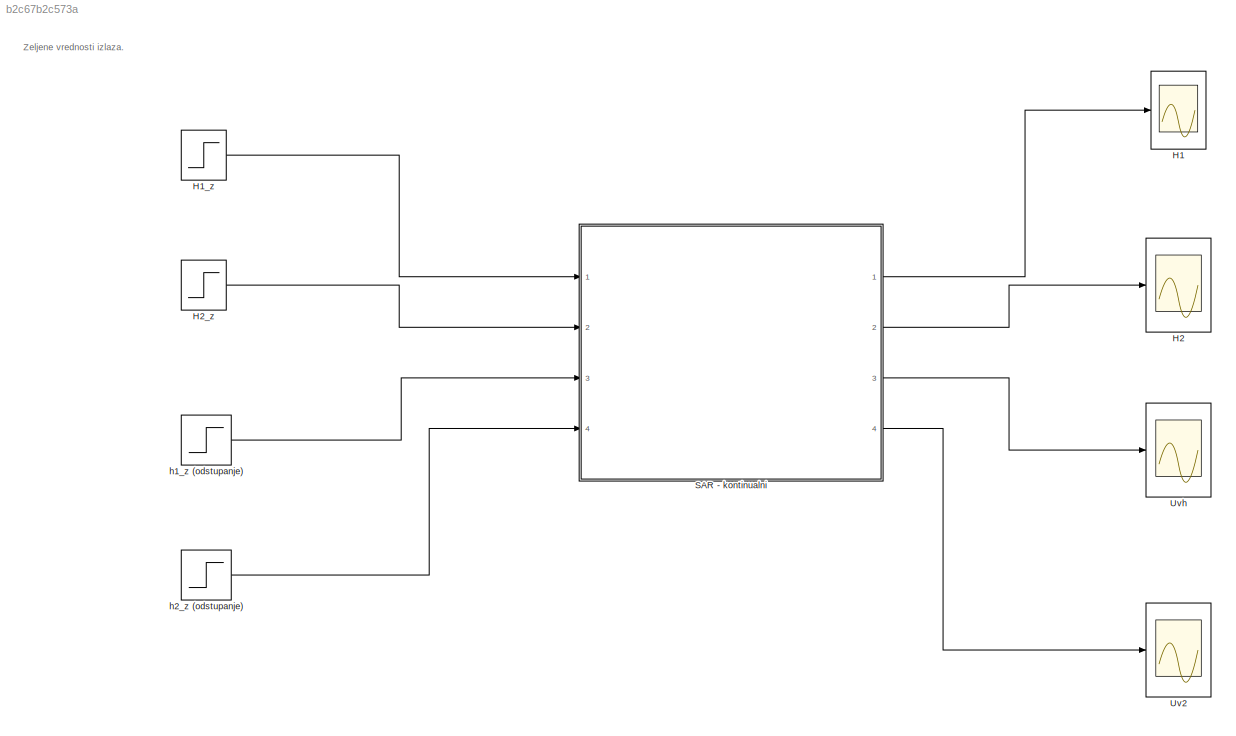
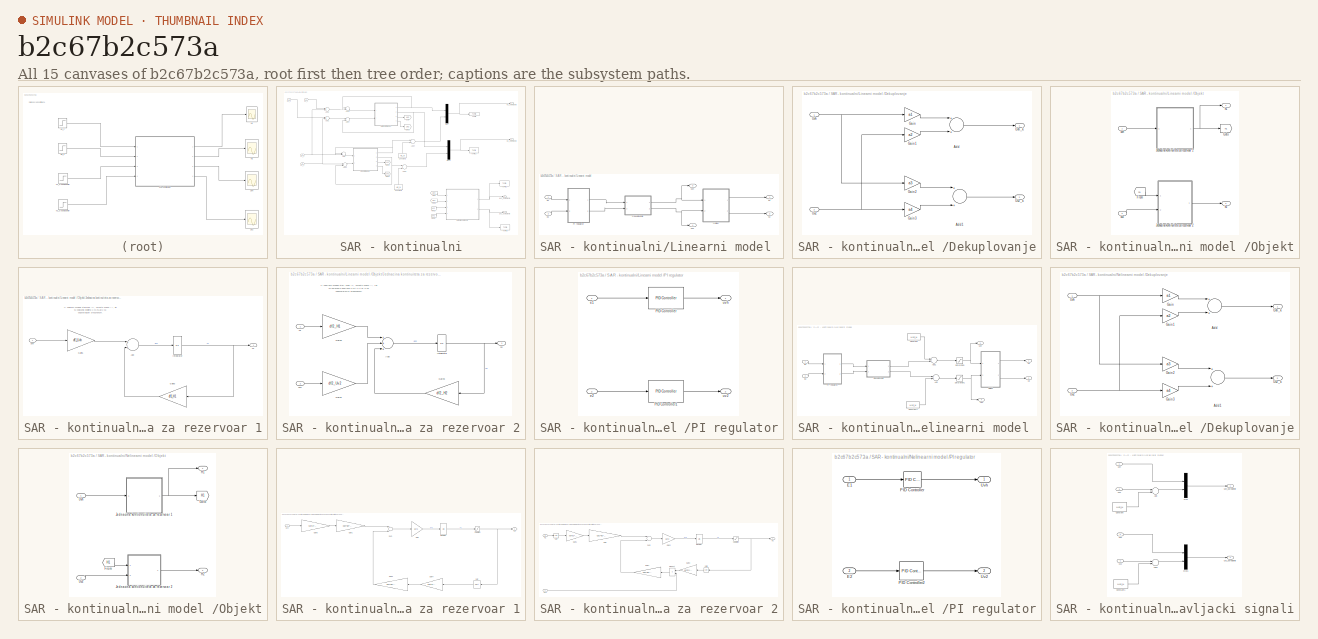
[diagram: thumbnail index - all 15 canvases of the model, root first then tree order]
MODEL slx_b2c67b2c573a
KIND model
CONFIG AbsTol = auto
CONFIG FixedStep = 0.01
CONFIG MaxStep = auto
CONFIG MinStep = auto
CONFIG RelTol = 1e-3
CONFIG SampleTimeConstraint = Unconstrained
CONFIG Solver = ode4
CONFIG SolverMode = Auto
CONFIG SolverName = ode4
CONFIG StartTime = 0.0
CONFIG StopTime = 400
BLOCK [Scope]  H2 
  Floating = off
  LimitDataPoints = off
  NumInputPorts = 1
  Ports = [1]
  SaveName = ScopeData4
BLOCK [Scope] H1
  Floating = off
  LimitDataPoints = off
  NumInputPorts = 1
  Ports = [1]
  SaveName = ScopeData3
BLOCK [Step] H1_z 
  After = H1_N
  SampleTime = 0
  Time = 0
BLOCK [Step] H2_z
  After = H2_N
  SampleTime = 0
  Time = 0
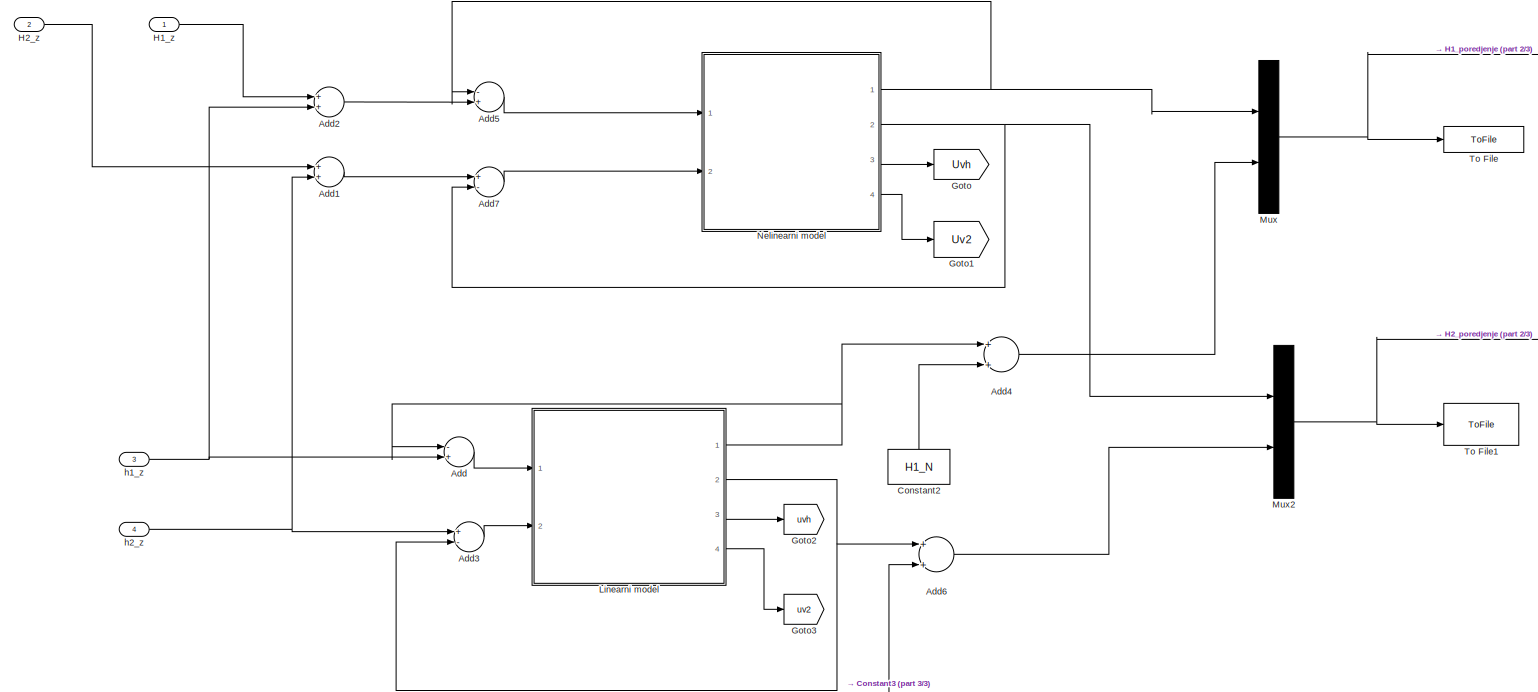
[diagram: SAR - kontinualni - part 1/3, full width, middle band]
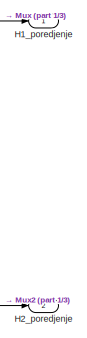
[diagram: SAR - kontinualni - part 2/3, top right region]
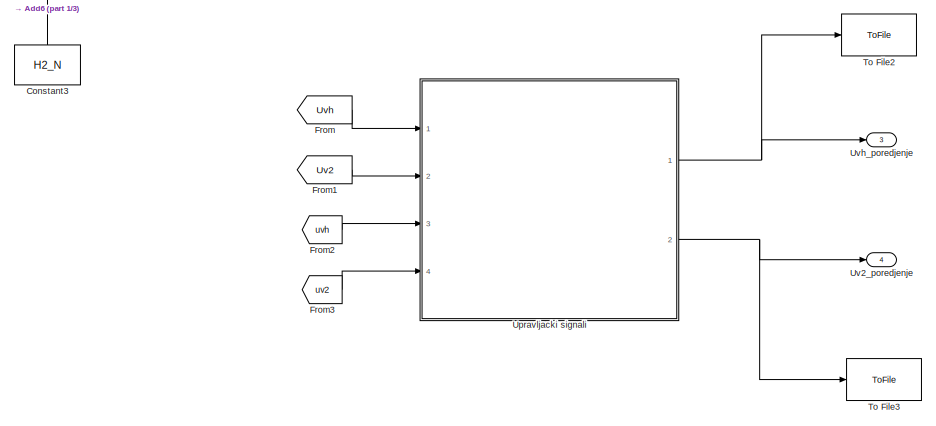
[diagram: SAR - kontinualni - part 3/3, bottom right region]
BLOCK [SubSystem] SAR - kontinualni
  Ports = [4, 4]
  RequestExecContextInheritance = off
BLOCK [Sum] SAR - kontinualni/Add
  InputSameDT = off
  Inputs = -+
  OutDataTypeStr = Inherit: Inherit via internal rule
  Ports = [2, 1]
  SaturateOnIntegerOverflow = off
BLOCK [Sum] SAR - kontinualni/Add1
  InputSameDT = off
  OutDataTypeStr = Inherit: Inherit via internal rule
  Ports = [2, 1]
  SaturateOnIntegerOverflow = off
BLOCK [Sum] SAR - kontinualni/Add2
  InputSameDT = off
  OutDataTypeStr = Inherit: Inherit via internal rule
  Ports = [2, 1]
  SaturateOnIntegerOverflow = off
BLOCK [Sum] SAR - kontinualni/Add3
  InputSameDT = off
  Inputs = +-
  OutDataTypeStr = Inherit: Inherit via internal rule
  Ports = [2, 1]
  SaturateOnIntegerOverflow = off
BLOCK [Sum] SAR - kontinualni/Add4
  InputSameDT = off
  OutDataTypeStr = Inherit: Inherit via internal rule
  Ports = [2, 1]
  SaturateOnIntegerOverflow = off
BLOCK [Sum] SAR - kontinualni/Add5
  InputSameDT = off
  Inputs = -+
  OutDataTypeStr = Inherit: Inherit via internal rule
  Ports = [2, 1]
  SaturateOnIntegerOverflow = off
BLOCK [Sum] SAR - kontinualni/Add6
  InputSameDT = off
  OutDataTypeStr = Inherit: Inherit via internal rule
  Ports = [2, 1]
  SaturateOnIntegerOverflow = off
BLOCK [Sum] SAR - kontinualni/Add7
  InputSameDT = off
  Inputs = +-
  OutDataTypeStr = Inherit: Inherit via internal rule
  Ports = [2, 1]
  SaturateOnIntegerOverflow = off
BLOCK [Constant] SAR - kontinualni/Constant2
  Value = H1_N
BLOCK [Constant] SAR - kontinualni/Constant3
  Value = H2_N
BLOCK [From] SAR - kontinualni/From
  GotoTag = Uvh
BLOCK [From] SAR - kontinualni/From1
  GotoTag = Uv2
BLOCK [From] SAR - kontinualni/From2
  GotoTag = uvh
BLOCK [From] SAR - kontinualni/From3
  GotoTag = uv2
BLOCK [Goto] SAR - kontinualni/Goto
  GotoTag = Uvh
BLOCK [Goto] SAR - kontinualni/Goto1
  GotoTag = Uv2
BLOCK [Goto] SAR - kontinualni/Goto2
  GotoTag = uvh
BLOCK [Goto] SAR - kontinualni/Goto3
  GotoTag = uv2
BLOCK [Outport] SAR - kontinualni/H1_poredjenje
  IconDisplay = Port number
BLOCK [Inport] SAR - kontinualni/H1_z
  IconDisplay = Port number
BLOCK [Outport] SAR - kontinualni/H2_poredjenje
  IconDisplay = Port number
  Port = 2
BLOCK [Inport] SAR - kontinualni/H2_z
  IconDisplay = Port number
  Port = 2
BLOCK [SubSystem] SAR - kontinualni/Linearni model 
  Ports = [2, 4]
  RequestExecContextInheritance = off
BLOCK [SubSystem] SAR - kontinualni/Linearni model /Dekuplovanje
  Ports = [2, 2]
  RequestExecContextInheritance = off
BLOCK [Sum] SAR - kontinualni/Linearni model /Dekuplovanje/Add
  InputSameDT = off
  OutDataTypeStr = Inherit: Inherit via internal rule
  Ports = [2, 1]
  SaturateOnIntegerOverflow = off
BLOCK [Sum] SAR - kontinualni/Linearni model /Dekuplovanje/Add1
  InputSameDT = off
  OutDataTypeStr = Inherit: Inherit via internal rule
  Ports = [2, 1]
  SaturateOnIntegerOverflow = off
BLOCK [Gain] SAR - kontinualni/Linearni model /Dekuplovanje/Gain
  Gain = a1
  OutDataTypeStr = Inherit: Inherit via internal rule
  ParamDataTypeStr = Inherit: Inherit via internal rule
  SaturateOnIntegerOverflow = off
BLOCK [Gain] SAR - kontinualni/Linearni model /Dekuplovanje/Gain1
  Gain = a2
  OutDataTypeStr = Inherit: Inherit via internal rule
  ParamDataTypeStr = Inherit: Inherit via internal rule
  SaturateOnIntegerOverflow = off
BLOCK [Gain] SAR - kontinualni/Linearni model /Dekuplovanje/Gain2
  Gain = a3
  OutDataTypeStr = Inherit: Inherit via internal rule
  ParamDataTypeStr = Inherit: Inherit via internal rule
  SaturateOnIntegerOverflow = off
BLOCK [Gain] SAR - kontinualni/Linearni model /Dekuplovanje/Gain3
  Gain = a4
  OutDataTypeStr = Inherit: Inherit via internal rule
  ParamDataTypeStr = Inherit: Inherit via internal rule
  SaturateOnIntegerOverflow = off
BLOCK [Inport] SAR - kontinualni/Linearni model /Dekuplovanje/Uv2
  IconDisplay = Port number
  Port = 2
BLOCK [Outport] SAR - kontinualni/Linearni model /Dekuplovanje/Uv2_k
  IconDisplay = Port number
  Port = 2
BLOCK [Inport] SAR - kontinualni/Linearni model /Dekuplovanje/Uvh
  IconDisplay = Port number
BLOCK [Outport] SAR - kontinualni/Linearni model /Dekuplovanje/Uvh_k
  IconDisplay = Port number
BLOCK [SubSystem] SAR - kontinualni/Linearni model /Objekt
  Ports = [2, 2]
  RequestExecContextInheritance = off
BLOCK [From] SAR - kontinualni/Linearni model /Objekt/From
  GotoTag = h1
BLOCK [Goto] SAR - kontinualni/Linearni model /Objekt/Goto
  GotoTag = h1
BLOCK [SubSystem] SAR - kontinualni/Linearni model /Objekt/Jednacina kontinuiteta za rezervoar 1
  Ports = [1, 1]
  RequestExecContextInheritance = off
BLOCK [Sum] SAR - kontinualni/Linearni model /Objekt/Jednacina kontinuiteta za rezervoar 1/Add
  InputSameDT = off
  OutDataTypeStr = Inherit: Inherit via internal rule
  Ports = [2, 1]
  SaturateOnIntegerOverflow = off
BLOCK [Gain] SAR - kontinualni/Linearni model /Objekt/Jednacina kontinuiteta za rezervoar 1/Gain1
  Gain = df1_Uvh
  OutDataTypeStr = Inherit: Inherit via internal rule
  ParamDataTypeStr = Inherit: Inherit via internal rule
  SaturateOnIntegerOverflow = off
BLOCK [Gain] SAR - kontinualni/Linearni model /Objekt/Jednacina kontinuiteta za rezervoar 1/Gain3
  Gain = df1_H1
  OutDataTypeStr = Inherit: Inherit via internal rule
  ParamDataTypeStr = Inherit: Inherit via internal rule
  SaturateOnIntegerOverflow = off
BLOCK [Integrator] SAR - kontinualni/Linearni model /Objekt/Jednacina kontinuiteta za rezervoar 1/Integrator
  Ports = [1, 1]
BLOCK [Outport] SAR - kontinualni/Linearni model /Objekt/Jednacina kontinuiteta za rezervoar 1/h1
  IconDisplay = Port number
BLOCK [Inport] SAR - kontinualni/Linearni model /Objekt/Jednacina kontinuiteta za rezervoar 1/uvh
  IconDisplay = Port number
BLOCK [SubSystem] SAR - kontinualni/Linearni model /Objekt/Jednacina kontinuiteta za rezervoar 2
  Ports = [2, 1]
  RequestExecContextInheritance = off
BLOCK [Sum] SAR - kontinualni/Linearni model /Objekt/Jednacina kontinuiteta za rezervoar 2/Add
  InputSameDT = off
  Inputs = +++
  OutDataTypeStr = Inherit: Inherit via internal rule
  Ports = [3, 1]
  SaturateOnIntegerOverflow = off
BLOCK [Gain] SAR - kontinualni/Linearni model /Objekt/Jednacina kontinuiteta za rezervoar 2/Gain1
  Gain = df2_Uv2
  OutDataTypeStr = Inherit: Inherit via internal rule
  ParamDataTypeStr = Inherit: Inherit via internal rule
  SaturateOnIntegerOverflow = off
BLOCK [Gain] SAR - kontinualni/Linearni model /Objekt/Jednacina kontinuiteta za rezervoar 2/Gain2
  Gain = df2_H1
  OutDataTypeStr = Inherit: Inherit via internal rule
  ParamDataTypeStr = Inherit: Inherit via internal rule
  SaturateOnIntegerOverflow = off
BLOCK [Gain] SAR - kontinualni/Linearni model /Objekt/Jednacina kontinuiteta za rezervoar 2/Gain3
  Gain = df2_H2
  OutDataTypeStr = Inherit: Inherit via internal rule
  ParamDataTypeStr = Inherit: Inherit via internal rule
  SaturateOnIntegerOverflow = off
BLOCK [Integrator] SAR - kontinualni/Linearni model /Objekt/Jednacina kontinuiteta za rezervoar 2/Integrator
  Ports = [1, 1]
BLOCK [Inport] SAR - kontinualni/Linearni model /Objekt/Jednacina kontinuiteta za rezervoar 2/h1
  IconDisplay = Port number
BLOCK [Outport] SAR - kontinualni/Linearni model /Objekt/Jednacina kontinuiteta za rezervoar 2/h2
  IconDisplay = Port number
BLOCK [Inport] SAR - kontinualni/Linearni model /Objekt/Jednacina kontinuiteta za rezervoar 2/uv2
  IconDisplay = Port number
  Port = 2
BLOCK [Outport] SAR - kontinualni/Linearni model /Objekt/h1
  IconDisplay = Port number
BLOCK [Outport] SAR - kontinualni/Linearni model /Objekt/h2
  IconDisplay = Port number
  Port = 2
BLOCK [Inport] SAR - kontinualni/Linearni model /Objekt/uv2
  IconDisplay = Port number
  Port = 2
BLOCK [Inport] SAR - kontinualni/Linearni model /Objekt/uvh
  IconDisplay = Port number
BLOCK [SubSystem] SAR - kontinualni/Linearni model /PI regulator
  Ports = [2, 2]
  RequestExecContextInheritance = off
BLOCK [Reference] SAR - kontinualni/Linearni model /PI regulator/PID Controller  REF=simulink/Continuous/PID Controller
  AntiWindupMode = none
  Controller = PI
  ControllerParametersSource = internal
  D = 0
  DGainOutDataTypeStr = Inherit: Inherit via internal rule
  DOutDataTypeStr = Inherit: Inherit via internal rule
  DOutMax = []
  DOutMin = []
  DParamDataTypeStr = Inherit: Inherit via internal rule
  DParamMax = []
  DParamMin = []
  DProdOutDataTypeStr = Inherit: Inherit via internal rule
  DifferentiatorICPrevScaledInput = 0
  DifferentiatorOutDataTypeStr = Inherit: Inherit via internal rule
  DifferentiatorOutMax = []
  DifferentiatorOutMin = []
  ExternalReset = none
  FilterContinuousStateAttributes = ''
  FilterMethod = Forward Euler
  FilterOutDataTypeStr = Inherit: Inherit via internal rule
  FilterOutMax = []
  FilterOutMin = []
  FilterRTWStateStorageClass = Auto
  FilterStateMustResolveToSignalObject = off
  Form = Parallel
  I = 0.318107260315565
  IGainOutDataTypeStr = Inherit: Inherit via internal rule
  IOutDataTypeStr = Inherit: Inherit via internal rule
  IOutMax = []
  IOutMin = []
  IParamDataTypeStr = Inherit: Inherit via internal rule
  IParamMax = []
  IParamMin = []
  IProdOutDataTypeStr = Inherit: Inherit via internal rule
  IgnoreLimit = off
  InitialConditionForFilter = 0
  InitialConditionForIntegrator = 0
  InitialConditionSource = internal
  IntegratorContinuousStateAttributes = ''
  IntegratorMethod = Forward Euler
  IntegratorOutDataTypeStr = Inherit: Inherit via internal rule
  IntegratorOutMax = []
  IntegratorOutMin = []
  IntegratorRTWStateStorageClass = Auto
  IntegratorStateMustResolveToSignalObject = off
  Kb = 1
  KbOutDataTypeStr = Inherit: Inherit via internal rule
  KbOutMax = []
  KbOutMin = []
  KbParamDataTypeStr = Inherit: Inherit via internal rule
  KbParamMax = []
  KbParamMin = []
  Kt = 1
  KtOutDataTypeStr = Inherit: Inherit via internal rule
  KtOutMax = []
  KtOutMin = []
  KtParamDataTypeStr = Inherit: Inherit via internal rule
  KtParamMax = []
  KtParamMin = []
  LimitOutput = off
  LinearizeAsGain = on
  LockScale = off
  LowerSaturationLimit = -inf
  N = 100
  NGainOutDataTypeStr = Inherit: Inherit via internal rule
  NOutDataTypeStr = Inherit: Inherit via internal rule
  NOutMax = []
  NOutMin = []
  NParamDataTypeStr = Inherit: Inherit via internal rule
  NParamMax = []
  NParamMin = []
  NProdOutDataTypeStr = Inherit: Inherit via internal rule
  P = 6.58388823392313
  PGainOutDataTypeStr = Inherit: Inherit via internal rule
  POutDataTypeStr = Inherit: Inherit via internal rule
  POutMax = []
  POutMin = []
  PParamDataTypeStr = Inherit: Inherit via internal rule
  PParamMax = []
  PParamMin = []
  PProdOutDataTypeStr = Inherit: Inherit via internal rule
  Ports = [1, 1]
  RndMeth = Floor
  SampleTime = -1
  SaturateOnIntegerOverflow = off
  SaturationOutDataTypeStr = Inherit: Same as input
  SaturationOutMax = []
  SaturationOutMin = []
  SourceBlock = simulink/Continuous/PID Controller
  SourceType = PID 1dof
  SumAccumDataTypeStr = Inherit: Inherit via internal rule
  SumDAccumDataTypeStr = Inherit: Inherit via internal rule
  SumDOutDataTypeStr = Inherit: Inherit via internal rule
  SumDOutMax = []
  SumDOutMin = []
  SumI1AccumDataTypeStr = Inherit: Inherit via internal rule
  SumI1OutDataTypeStr = Inherit: Inherit via internal rule
  SumI1OutMax = []
  SumI1OutMin = []
  SumI2AccumDataTypeStr = Inherit: Inherit via internal rule
  SumI2OutDataTypeStr = Inherit: Inherit via internal rule
  SumI2OutMax = []
  SumI2OutMin = []
  SumI3AccumDataTypeStr = Inherit: Inherit via internal rule
  SumI3OutDataTypeStr = Inherit: Inherit via internal rule
  SumI3OutMax = []
  SumI3OutMin = []
  SumOutDataTypeStr = Inherit: Inherit via internal rule
  SumOutMax = []
  SumOutMin = []
  TimeDomain = Continuous-time
  TrackingMode = off
  UpperSaturationLimit = inf
  UseFilter = on
  ZeroCross = on
BLOCK [Reference] SAR - kontinualni/Linearni model /PI regulator/PID Controller1  REF=simulink/Continuous/PID Controller
  AntiWindupMode = none
  Controller = PI
  ControllerParametersSource = internal
  D = 0
  DGainOutDataTypeStr = Inherit: Inherit via internal rule
  DOutDataTypeStr = Inherit: Inherit via internal rule
  DOutMax = []
  DOutMin = []
  DParamDataTypeStr = Inherit: Inherit via internal rule
  DParamMax = []
  DParamMin = []
  DProdOutDataTypeStr = Inherit: Inherit via internal rule
  DifferentiatorICPrevScaledInput = 0
  DifferentiatorOutDataTypeStr = Inherit: Inherit via internal rule
  DifferentiatorOutMax = []
  DifferentiatorOutMin = []
  ExternalReset = none
  FilterContinuousStateAttributes = ''
  FilterMethod = Forward Euler
  FilterOutDataTypeStr = Inherit: Inherit via internal rule
  FilterOutMax = []
  FilterOutMin = []
  FilterRTWStateStorageClass = Auto
  FilterStateMustResolveToSignalObject = off
  Form = Parallel
  I = -0.943120785670637
  IGainOutDataTypeStr = Inherit: Inherit via internal rule
  IOutDataTypeStr = Inherit: Inherit via internal rule
  IOutMax = []
  IOutMin = []
  IParamDataTypeStr = Inherit: Inherit via internal rule
  IParamMax = []
  IParamMin = []
  IProdOutDataTypeStr = Inherit: Inherit via internal rule
  IgnoreLimit = off
  InitialConditionForFilter = 0
  InitialConditionForIntegrator = 0
  InitialConditionSource = internal
  IntegratorContinuousStateAttributes = ''
  IntegratorMethod = Forward Euler
  IntegratorOutDataTypeStr = Inherit: Inherit via internal rule
  IntegratorOutMax = []
  IntegratorOutMin = []
  IntegratorRTWStateStorageClass = Auto
  IntegratorStateMustResolveToSignalObject = off
  Kb = 1
  KbOutDataTypeStr = Inherit: Inherit via internal rule
  KbOutMax = []
  KbOutMin = []
  KbParamDataTypeStr = Inherit: Inherit via internal rule
  KbParamMax = []
  KbParamMin = []
  Kt = 1
  KtOutDataTypeStr = Inherit: Inherit via internal rule
  KtOutMax = []
  KtOutMin = []
  KtParamDataTypeStr = Inherit: Inherit via internal rule
  KtParamMax = []
  KtParamMin = []
  LimitOutput = off
  LinearizeAsGain = on
  LockScale = off
  LowerSaturationLimit = -inf
  N = 100
  NGainOutDataTypeStr = Inherit: Inherit via internal rule
  NOutDataTypeStr = Inherit: Inherit via internal rule
  NOutMax = []
  NOutMin = []
  NParamDataTypeStr = Inherit: Inherit via internal rule
  NParamMax = []
  NParamMin = []
  NProdOutDataTypeStr = Inherit: Inherit via internal rule
  P = -9.63504962105945
  PGainOutDataTypeStr = Inherit: Inherit via internal rule
  POutDataTypeStr = Inherit: Inherit via internal rule
  POutMax = []
  POutMin = []
  PParamDataTypeStr = Inherit: Inherit via internal rule
  PParamMax = []
  PParamMin = []
  PProdOutDataTypeStr = Inherit: Inherit via internal rule
  Ports = [1, 1]
  RndMeth = Floor
  SampleTime = -1
  SaturateOnIntegerOverflow = off
  SaturationOutDataTypeStr = Inherit: Same as input
  SaturationOutMax = []
  SaturationOutMin = []
  SourceBlock = simulink/Continuous/PID Controller
  SourceType = PID 1dof
  SumAccumDataTypeStr = Inherit: Inherit via internal rule
  SumDAccumDataTypeStr = Inherit: Inherit via internal rule
  SumDOutDataTypeStr = Inherit: Inherit via internal rule
  SumDOutMax = []
  SumDOutMin = []
  SumI1AccumDataTypeStr = Inherit: Inherit via internal rule
  SumI1OutDataTypeStr = Inherit: Inherit via internal rule
  SumI1OutMax = []
  SumI1OutMin = []
  SumI2AccumDataTypeStr = Inherit: Inherit via internal rule
  SumI2OutDataTypeStr = Inherit: Inherit via internal rule
  SumI2OutMax = []
  SumI2OutMin = []
  SumI3AccumDataTypeStr = Inherit: Inherit via internal rule
  SumI3OutDataTypeStr = Inherit: Inherit via internal rule
  SumI3OutMax = []
  SumI3OutMin = []
  SumOutDataTypeStr = Inherit: Inherit via internal rule
  SumOutMax = []
  SumOutMin = []
  TimeDomain = Continuous-time
  TrackingMode = off
  UpperSaturationLimit = inf
  UseFilter = on
  ZeroCross = on
BLOCK [Inport] SAR - kontinualni/Linearni model /PI regulator/e1
  IconDisplay = Port number
BLOCK [Inport] SAR - kontinualni/Linearni model /PI regulator/e2
  IconDisplay = Port number
  Port = 2
BLOCK [Outport] SAR - kontinualni/Linearni model /PI regulator/uv2
  IconDisplay = Port number
  Port = 2
BLOCK [Outport] SAR - kontinualni/Linearni model /PI regulator/uvh
  IconDisplay = Port number
BLOCK [Inport] SAR - kontinualni/Linearni model /e1
  IconDisplay = Port number
BLOCK [Inport] SAR - kontinualni/Linearni model /e2
  IconDisplay = Port number
  Port = 2
BLOCK [Outport] SAR - kontinualni/Linearni model /h1
  IconDisplay = Port number
BLOCK [Outport] SAR - kontinualni/Linearni model /h2
  IconDisplay = Port number
  Port = 2
BLOCK [Outport] SAR - kontinualni/Linearni model /uv2
  IconDisplay = Port number
  Port = 4
BLOCK [Outport] SAR - kontinualni/Linearni model /uvh
  IconDisplay = Port number
  Port = 3
BLOCK [Mux] SAR - kontinualni/Mux
  DisplayOption = bar
  Inputs = 2
  Ports = [2, 1]
BLOCK [Mux] SAR - kontinualni/Mux2
  DisplayOption = bar
  Inputs = 2
  Ports = [2, 1]
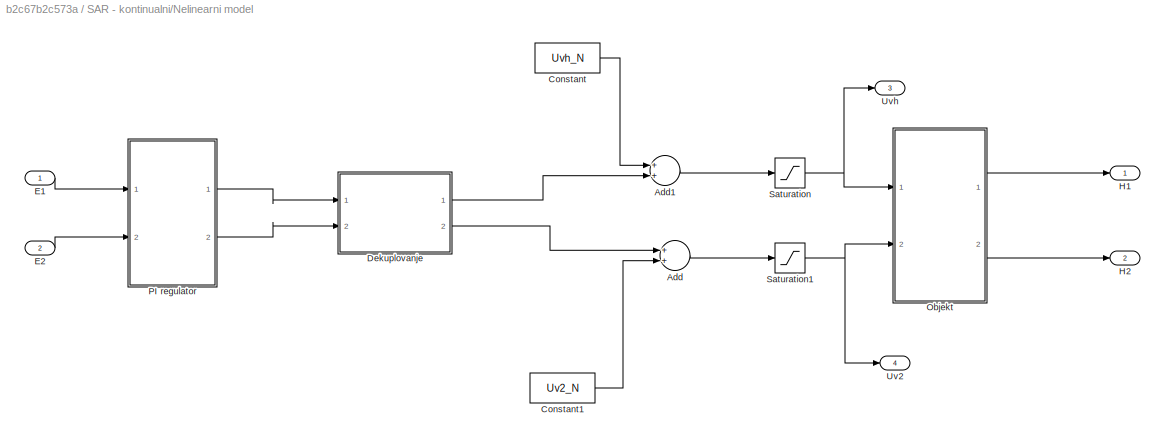
BLOCK [SubSystem] SAR - kontinualni/Nelinearni model 
  Ports = [2, 4]
  RequestExecContextInheritance = off
BLOCK [Sum] SAR - kontinualni/Nelinearni model /Add
  InputSameDT = off
  OutDataTypeStr = Inherit: Inherit via internal rule
  Ports = [2, 1]
  SaturateOnIntegerOverflow = off
BLOCK [Sum] SAR - kontinualni/Nelinearni model /Add1
  InputSameDT = off
  OutDataTypeStr = Inherit: Inherit via internal rule
  Ports = [2, 1]
  SaturateOnIntegerOverflow = off
BLOCK [Constant] SAR - kontinualni/Nelinearni model /Constant
  Value = Uvh_N
BLOCK [Constant] SAR - kontinualni/Nelinearni model /Constant1
  Value = Uv2_N
BLOCK [SubSystem] SAR - kontinualni/Nelinearni model /Dekuplovanje
  Ports = [2, 2]
  RequestExecContextInheritance = off
BLOCK [Sum] SAR - kontinualni/Nelinearni model /Dekuplovanje/Add
  InputSameDT = off
  OutDataTypeStr = Inherit: Inherit via internal rule
  Ports = [2, 1]
  SaturateOnIntegerOverflow = off
BLOCK [Sum] SAR - kontinualni/Nelinearni model /Dekuplovanje/Add1
  InputSameDT = off
  OutDataTypeStr = Inherit: Inherit via internal rule
  Ports = [2, 1]
  SaturateOnIntegerOverflow = off
BLOCK [Gain] SAR - kontinualni/Nelinearni model /Dekuplovanje/Gain
  Gain = a1
  OutDataTypeStr = Inherit: Inherit via internal rule
  ParamDataTypeStr = Inherit: Inherit via internal rule
  SaturateOnIntegerOverflow = off
BLOCK [Gain] SAR - kontinualni/Nelinearni model /Dekuplovanje/Gain1
  Gain = a2
  OutDataTypeStr = Inherit: Inherit via internal rule
  ParamDataTypeStr = Inherit: Inherit via internal rule
  SaturateOnIntegerOverflow = off
BLOCK [Gain] SAR - kontinualni/Nelinearni model /Dekuplovanje/Gain2
  Gain = a3
  OutDataTypeStr = Inherit: Inherit via internal rule
  ParamDataTypeStr = Inherit: Inherit via internal rule
  SaturateOnIntegerOverflow = off
BLOCK [Gain] SAR - kontinualni/Nelinearni model /Dekuplovanje/Gain3
  Gain = a4
  OutDataTypeStr = Inherit: Inherit via internal rule
  ParamDataTypeStr = Inherit: Inherit via internal rule
  SaturateOnIntegerOverflow = off
BLOCK [Inport] SAR - kontinualni/Nelinearni model /Dekuplovanje/Uv2
  IconDisplay = Port number
  Port = 2
BLOCK [Outport] SAR - kontinualni/Nelinearni model /Dekuplovanje/Uv2_k
  IconDisplay = Port number
  Port = 2
BLOCK [Inport] SAR - kontinualni/Nelinearni model /Dekuplovanje/Uvh
  IconDisplay = Port number
BLOCK [Outport] SAR - kontinualni/Nelinearni model /Dekuplovanje/Uvh_k
  IconDisplay = Port number
BLOCK [Inport] SAR - kontinualni/Nelinearni model /E1
  IconDisplay = Port number
BLOCK [Inport] SAR - kontinualni/Nelinearni model /E2
  IconDisplay = Port number
  Port = 2
BLOCK [Outport] SAR - kontinualni/Nelinearni model /H1
  IconDisplay = Port number
BLOCK [Outport] SAR - kontinualni/Nelinearni model /H2
  IconDisplay = Port number
  Port = 2
BLOCK [SubSystem] SAR - kontinualni/Nelinearni model /Objekt
  Ports = [2, 2]
  RequestExecContextInheritance = off
BLOCK [From] SAR - kontinualni/Nelinearni model /Objekt/From
  GotoTag = H1
BLOCK [Goto] SAR - kontinualni/Nelinearni model /Objekt/Goto
  GotoTag = H1
BLOCK [Outport] SAR - kontinualni/Nelinearni model /Objekt/H1
  IconDisplay = Port number
BLOCK [Outport] SAR - kontinualni/Nelinearni model /Objekt/H2
  IconDisplay = Port number
  Port = 2
BLOCK [SubSystem] SAR - kontinualni/Nelinearni model /Objekt/Jednacina kontionuiteta za rezervoar 1
  Ports = [1, 1]
  RequestExecContextInheritance = off
BLOCK [Gain] SAR - kontinualni/Nelinearni model /Objekt/Jednacina kontionuiteta za rezervoar 1/Gain
  Gain = 1/Ar1
  OutDataTypeStr = Inherit: Inherit via internal rule
  ParamDataTypeStr = Inherit: Inherit via internal rule
  SaturateOnIntegerOverflow = off
BLOCK [Gain] SAR - kontinualni/Nelinearni model /Objekt/Jednacina kontionuiteta za rezervoar 1/Gain1
  Gain = Cdh*wh*Kvh
  OutDataTypeStr = Inherit: Inherit via internal rule
  ParamDataTypeStr = Inherit: Inherit via internal rule
  SaturateOnIntegerOverflow = off
BLOCK [Gain] SAR - kontinualni/Nelinearni model /Objekt/Jednacina kontionuiteta za rezervoar 1/Gain3
  Gain = Cd1*w1*Kv1*Uv1
  OutDataTypeStr = Inherit: Inherit via internal rule
  ParamDataTypeStr = Inherit: Inherit via internal rule
  SaturateOnIntegerOverflow = off
BLOCK [Gain] SAR - kontinualni/Nelinearni model /Objekt/Jednacina kontionuiteta za rezervoar 1/Gain4
  Gain = sqrt(2*g)
  OutDataTypeStr = Inherit: Inherit via internal rule
  ParamDataTypeStr = Inherit: Inherit via internal rule
  SaturateOnIntegerOverflow = off
BLOCK [Gain] SAR - kontinualni/Nelinearni model /Objekt/Jednacina kontionuiteta za rezervoar 1/Gain5
  Gain = sqrt(2*Ph/ro)
  OutDataTypeStr = Inherit: Inherit via internal rule
  ParamDataTypeStr = Inherit: Inherit via internal rule
  SaturateOnIntegerOverflow = off
BLOCK [Outport] SAR - kontinualni/Nelinearni model /Objekt/Jednacina kontionuiteta za rezervoar 1/H1
  IconDisplay = Port number
BLOCK [Integrator] SAR - kontinualni/Nelinearni model /Objekt/Jednacina kontionuiteta za rezervoar 1/Integrator
  InitialCondition = H1_N
  Ports = [1, 1]
BLOCK [Saturate] SAR - kontinualni/Nelinearni model /Objekt/Jednacina kontionuiteta za rezervoar 1/Saturation
  InputPortMap = u0
  LowerLimit = H1_min
  Ports = [1, 1]
  UpperLimit = H1_max
BLOCK [Sqrt] SAR - kontinualni/Nelinearni model /Objekt/Jednacina kontionuiteta za rezervoar 1/Sqrt
BLOCK [Sum] SAR - kontinualni/Nelinearni model /Objekt/Jednacina kontionuiteta za rezervoar 1/Sum
  InputSameDT = off
  Inputs = +-
  OutDataTypeStr = Inherit: Inherit via internal rule
  Ports = [2, 1]
  SaturateOnIntegerOverflow = off
BLOCK [Inport] SAR - kontinualni/Nelinearni model /Objekt/Jednacina kontionuiteta za rezervoar 1/Uvh
  IconDisplay = Port number
BLOCK [SubSystem] SAR - kontinualni/Nelinearni model /Objekt/Jednacina kontionuiteta za rezervoar 2
  Ports = [2, 1]
  RequestExecContextInheritance = off
BLOCK [Gain] SAR - kontinualni/Nelinearni model /Objekt/Jednacina kontionuiteta za rezervoar 2/Gain
  Gain = Cd1*w1*Kv1*Uv1
  OutDataTypeStr = Inherit: Inherit via internal rule
  ParamDataTypeStr = Inherit: Inherit via internal rule
  SaturateOnIntegerOverflow = off
BLOCK [Gain] SAR - kontinualni/Nelinearni model /Objekt/Jednacina kontionuiteta za rezervoar 2/Gain1
  Gain = sqrt(2*g)
  OutDataTypeStr = Inherit: Inherit via internal rule
  ParamDataTypeStr = Inherit: Inherit via internal rule
  SaturateOnIntegerOverflow = off
BLOCK [Gain] SAR - kontinualni/Nelinearni model /Objekt/Jednacina kontionuiteta za rezervoar 2/Gain2
  Gain = 1/Ar2
  OutDataTypeStr = Inherit: Inherit via internal rule
  ParamDataTypeStr = Inherit: Inherit via internal rule
  SaturateOnIntegerOverflow = off
BLOCK [Gain] SAR - kontinualni/Nelinearni model /Objekt/Jednacina kontionuiteta za rezervoar 2/Gain3
  Gain = sqrt(2*g)
  OutDataTypeStr = Inherit: Inherit via internal rule
  ParamDataTypeStr = Inherit: Inherit via internal rule
  SaturateOnIntegerOverflow = off
BLOCK [Gain] SAR - kontinualni/Nelinearni model /Objekt/Jednacina kontionuiteta za rezervoar 2/Gain4
  Gain = Cd2*w2*Kv2
  OutDataTypeStr = Inherit: Inherit via internal rule
  ParamDataTypeStr = Inherit: Inherit via internal rule
  SaturateOnIntegerOverflow = off
BLOCK [Inport] SAR - kontinualni/Nelinearni model /Objekt/Jednacina kontionuiteta za rezervoar 2/H1
  IconDisplay = Port number
BLOCK [Outport] SAR - kontinualni/Nelinearni model /Objekt/Jednacina kontionuiteta za rezervoar 2/H2
  IconDisplay = Port number
BLOCK [Integrator] SAR - kontinualni/Nelinearni model /Objekt/Jednacina kontionuiteta za rezervoar 2/Integrator
  InitialCondition = H2_N
  Ports = [1, 1]
BLOCK [Product] SAR - kontinualni/Nelinearni model /Objekt/Jednacina kontionuiteta za rezervoar 2/Product
  InputSameDT = off
  OutDataTypeStr = Inherit: Inherit via internal rule
  Ports = [2, 1]
  RndMeth = Floor
  SaturateOnIntegerOverflow = off
BLOCK [Saturate] SAR - kontinualni/Nelinearni model /Objekt/Jednacina kontionuiteta za rezervoar 2/Saturation
  InputPortMap = u0
  LowerLimit = H2_min
  Ports = [1, 1]
  UpperLimit = H2_max
BLOCK [Sqrt] SAR - kontinualni/Nelinearni model /Objekt/Jednacina kontionuiteta za rezervoar 2/Sqrt
BLOCK [Sqrt] SAR - kontinualni/Nelinearni model /Objekt/Jednacina kontionuiteta za rezervoar 2/Sqrt1
BLOCK [Sum] SAR - kontinualni/Nelinearni model /Objekt/Jednacina kontionuiteta za rezervoar 2/Sum
  InputSameDT = off
  Inputs = +-
  OutDataTypeStr = Inherit: Inherit via internal rule
  Ports = [2, 1]
  SaturateOnIntegerOverflow = off
BLOCK [Inport] SAR - kontinualni/Nelinearni model /Objekt/Jednacina kontionuiteta za rezervoar 2/Uv2
  IconDisplay = Port number
  Port = 2
BLOCK [Inport] SAR - kontinualni/Nelinearni model /Objekt/Uv2
  IconDisplay = Port number
  Port = 2
BLOCK [Inport] SAR - kontinualni/Nelinearni model /Objekt/Uvh
  IconDisplay = Port number
BLOCK [SubSystem] SAR - kontinualni/Nelinearni model /PI regulator
  Ports = [2, 2]
  RequestExecContextInheritance = off
BLOCK [Inport] SAR - kontinualni/Nelinearni model /PI regulator/E1
  IconDisplay = Port number
BLOCK [Inport] SAR - kontinualni/Nelinearni model /PI regulator/E2
  IconDisplay = Port number
  Port = 2
BLOCK [Reference] SAR - kontinualni/Nelinearni model /PI regulator/PID Controller  REF=simulink/Continuous/PID Controller
  AntiWindupMode = none
  Controller = PI
  ControllerParametersSource = internal
  D = 0
  DGainOutDataTypeStr = Inherit: Inherit via internal rule
  DOutDataTypeStr = Inherit: Inherit via internal rule
  DOutMax = []
  DOutMin = []
  DParamDataTypeStr = Inherit: Inherit via internal rule
  DParamMax = []
  DParamMin = []
  DProdOutDataTypeStr = Inherit: Inherit via internal rule
  DifferentiatorICPrevScaledInput = 0
  DifferentiatorOutDataTypeStr = Inherit: Inherit via internal rule
  DifferentiatorOutMax = []
  DifferentiatorOutMin = []
  ExternalReset = none
  FilterContinuousStateAttributes = ''
  FilterMethod = Forward Euler
  FilterOutDataTypeStr = Inherit: Inherit via internal rule
  FilterOutMax = []
  FilterOutMin = []
  FilterRTWStateStorageClass = Auto
  FilterStateMustResolveToSignalObject = off
  Form = Parallel
  I = 0.318107260315565
  IGainOutDataTypeStr = Inherit: Inherit via internal rule
  IOutDataTypeStr = Inherit: Inherit via internal rule
  IOutMax = []
  IOutMin = []
  IParamDataTypeStr = Inherit: Inherit via internal rule
  IParamMax = []
  IParamMin = []
  IProdOutDataTypeStr = Inherit: Inherit via internal rule
  IgnoreLimit = off
  InitialConditionForFilter = 0
  InitialConditionForIntegrator = 0
  InitialConditionSource = internal
  IntegratorContinuousStateAttributes = ''
  IntegratorMethod = Forward Euler
  IntegratorOutDataTypeStr = Inherit: Inherit via internal rule
  IntegratorOutMax = []
  IntegratorOutMin = []
  IntegratorRTWStateStorageClass = Auto
  IntegratorStateMustResolveToSignalObject = off
  Kb = 1
  KbOutDataTypeStr = Inherit: Inherit via internal rule
  KbOutMax = []
  KbOutMin = []
  KbParamDataTypeStr = Inherit: Inherit via internal rule
  KbParamMax = []
  KbParamMin = []
  Kt = 1
  KtOutDataTypeStr = Inherit: Inherit via internal rule
  KtOutMax = []
  KtOutMin = []
  KtParamDataTypeStr = Inherit: Inherit via internal rule
  KtParamMax = []
  KtParamMin = []
  LimitOutput = off
  LinearizeAsGain = on
  LockScale = off
  LowerSaturationLimit = -inf
  N = 100
  NGainOutDataTypeStr = Inherit: Inherit via internal rule
  NOutDataTypeStr = Inherit: Inherit via internal rule
  NOutMax = []
  NOutMin = []
  NParamDataTypeStr = Inherit: Inherit via internal rule
  NParamMax = []
  NParamMin = []
  NProdOutDataTypeStr = Inherit: Inherit via internal rule
  P = 6.58388823392313
  PGainOutDataTypeStr = Inherit: Inherit via internal rule
  POutDataTypeStr = Inherit: Inherit via internal rule
  POutMax = []
  POutMin = []
  PParamDataTypeStr = Inherit: Inherit via internal rule
  PParamMax = []
  PParamMin = []
  PProdOutDataTypeStr = Inherit: Inherit via internal rule
  Ports = [1, 1]
  RndMeth = Floor
  SampleTime = -1
  SaturateOnIntegerOverflow = off
  SaturationOutDataTypeStr = Inherit: Same as input
  SaturationOutMax = []
  SaturationOutMin = []
  SourceBlock = simulink/Continuous/PID Controller
  SourceType = PID 1dof
  SumAccumDataTypeStr = Inherit: Inherit via internal rule
  SumDAccumDataTypeStr = Inherit: Inherit via internal rule
  SumDOutDataTypeStr = Inherit: Inherit via internal rule
  SumDOutMax = []
  SumDOutMin = []
  SumI1AccumDataTypeStr = Inherit: Inherit via internal rule
  SumI1OutDataTypeStr = Inherit: Inherit via internal rule
  SumI1OutMax = []
  SumI1OutMin = []
  SumI2AccumDataTypeStr = Inherit: Inherit via internal rule
  SumI2OutDataTypeStr = Inherit: Inherit via internal rule
  SumI2OutMax = []
  SumI2OutMin = []
  SumI3AccumDataTypeStr = Inherit: Inherit via internal rule
  SumI3OutDataTypeStr = Inherit: Inherit via internal rule
  SumI3OutMax = []
  SumI3OutMin = []
  SumOutDataTypeStr = Inherit: Inherit via internal rule
  SumOutMax = []
  SumOutMin = []
  TimeDomain = Continuous-time
  TrackingMode = off
  UpperSaturationLimit = inf
  UseFilter = on
  ZeroCross = on
BLOCK [Reference] SAR - kontinualni/Nelinearni model /PI regulator/PID Controller2  REF=simulink/Continuous/PID Controller
  AntiWindupMode = none
  Controller = PI
  ControllerParametersSource = internal
  D = 0
  DGainOutDataTypeStr = Inherit: Inherit via internal rule
  DOutDataTypeStr = Inherit: Inherit via internal rule
  DOutMax = []
  DOutMin = []
  DParamDataTypeStr = Inherit: Inherit via internal rule
  DParamMax = []
  DParamMin = []
  DProdOutDataTypeStr = Inherit: Inherit via internal rule
  DifferentiatorICPrevScaledInput = 0
  DifferentiatorOutDataTypeStr = Inherit: Inherit via internal rule
  DifferentiatorOutMax = []
  DifferentiatorOutMin = []
  ExternalReset = none
  FilterContinuousStateAttributes = ''
  FilterMethod = Forward Euler
  FilterOutDataTypeStr = Inherit: Inherit via internal rule
  FilterOutMax = []
  FilterOutMin = []
  FilterRTWStateStorageClass = Auto
  FilterStateMustResolveToSignalObject = off
  Form = Parallel
  I = -0.943120785670637
  IGainOutDataTypeStr = Inherit: Inherit via internal rule
  IOutDataTypeStr = Inherit: Inherit via internal rule
  IOutMax = []
  IOutMin = []
  IParamDataTypeStr = Inherit: Inherit via internal rule
  IParamMax = []
  IParamMin = []
  IProdOutDataTypeStr = Inherit: Inherit via internal rule
  IgnoreLimit = off
  InitialConditionForFilter = 0
  InitialConditionForIntegrator = 0
  InitialConditionSource = internal
  IntegratorContinuousStateAttributes = ''
  IntegratorMethod = Forward Euler
  IntegratorOutDataTypeStr = Inherit: Inherit via internal rule
  IntegratorOutMax = []
  IntegratorOutMin = []
  IntegratorRTWStateStorageClass = Auto
  IntegratorStateMustResolveToSignalObject = off
  Kb = 1
  KbOutDataTypeStr = Inherit: Inherit via internal rule
  KbOutMax = []
  KbOutMin = []
  KbParamDataTypeStr = Inherit: Inherit via internal rule
  KbParamMax = []
  KbParamMin = []
  Kt = 1
  KtOutDataTypeStr = Inherit: Inherit via internal rule
  KtOutMax = []
  KtOutMin = []
  KtParamDataTypeStr = Inherit: Inherit via internal rule
  KtParamMax = []
  KtParamMin = []
  LimitOutput = off
  LinearizeAsGain = on
  LockScale = off
  LowerSaturationLimit = -inf
  N = 100
  NGainOutDataTypeStr = Inherit: Inherit via internal rule
  NOutDataTypeStr = Inherit: Inherit via internal rule
  NOutMax = []
  NOutMin = []
  NParamDataTypeStr = Inherit: Inherit via internal rule
  NParamMax = []
  NParamMin = []
  NProdOutDataTypeStr = Inherit: Inherit via internal rule
  P = -9.63504962105945
  PGainOutDataTypeStr = Inherit: Inherit via internal rule
  POutDataTypeStr = Inherit: Inherit via internal rule
  POutMax = []
  POutMin = []
  PParamDataTypeStr = Inherit: Inherit via internal rule
  PParamMax = []
  PParamMin = []
  PProdOutDataTypeStr = Inherit: Inherit via internal rule
  Ports = [1, 1]
  RndMeth = Floor
  SampleTime = -1
  SaturateOnIntegerOverflow = off
  SaturationOutDataTypeStr = Inherit: Same as input
  SaturationOutMax = []
  SaturationOutMin = []
  SourceBlock = simulink/Continuous/PID Controller
  SourceType = PID 1dof
  SumAccumDataTypeStr = Inherit: Inherit via internal rule
  SumDAccumDataTypeStr = Inherit: Inherit via internal rule
  SumDOutDataTypeStr = Inherit: Inherit via internal rule
  SumDOutMax = []
  SumDOutMin = []
  SumI1AccumDataTypeStr = Inherit: Inherit via internal rule
  SumI1OutDataTypeStr = Inherit: Inherit via internal rule
  SumI1OutMax = []
  SumI1OutMin = []
  SumI2AccumDataTypeStr = Inherit: Inherit via internal rule
  SumI2OutDataTypeStr = Inherit: Inherit via internal rule
  SumI2OutMax = []
  SumI2OutMin = []
  SumI3AccumDataTypeStr = Inherit: Inherit via internal rule
  SumI3OutDataTypeStr = Inherit: Inherit via internal rule
  SumI3OutMax = []
  SumI3OutMin = []
  SumOutDataTypeStr = Inherit: Inherit via internal rule
  SumOutMax = []
  SumOutMin = []
  TimeDomain = Continuous-time
  TrackingMode = off
  UpperSaturationLimit = inf
  UseFilter = on
  ZeroCross = on
BLOCK [Outport] SAR - kontinualni/Nelinearni model /PI regulator/Uv2
  IconDisplay = Port number
  Port = 2
BLOCK [Outport] SAR - kontinualni/Nelinearni model /PI regulator/Uvh
  IconDisplay = Port number
BLOCK [Saturate] SAR - kontinualni/Nelinearni model /Saturation
  InputPortMap = u0
  LowerLimit = Uvh_min
  Ports = [1, 1]
  UpperLimit = Uvh_max
BLOCK [Saturate] SAR - kontinualni/Nelinearni model /Saturation1
  InputPortMap = u0
  LowerLimit = Uv2_min
  Ports = [1, 1]
  UpperLimit = Uv2_max
BLOCK [Outport] SAR - kontinualni/Nelinearni model /Uv2
  IconDisplay = Port number
  Port = 4
BLOCK [Outport] SAR - kontinualni/Nelinearni model /Uvh
  IconDisplay = Port number
  Port = 3
BLOCK [ToFile] SAR - kontinualni/To File
  Filename = R1_nivo_PI_kontinualni.mat
  MatrixName = H1_PI_kont
  Ports = [1]
BLOCK [ToFile] SAR - kontinualni/To File1
  Filename = R2_nivo_PI_kontinualni.mat
  MatrixName = H2_PI_kont
  Ports = [1]
BLOCK [ToFile] SAR - kontinualni/To File2
  Filename = Uvh_PI_kontinualni.mat
  MatrixName = Uvh_PI_kont
  Ports = [1]
BLOCK [ToFile] SAR - kontinualni/To File3
  Filename = Uv2_PI_kontinualni.mat
  MatrixName = Uv2_PI_kont
  Ports = [1]
BLOCK [SubSystem] SAR - kontinualni/Upravljacki signali
  Ports = [4, 2]
  RequestExecContextInheritance = off
BLOCK [Sum] SAR - kontinualni/Upravljacki signali/Add
  InputSameDT = off
  OutDataTypeStr = Inherit: Inherit via internal rule
  Ports = [2, 1]
  SaturateOnIntegerOverflow = off
BLOCK [Sum] SAR - kontinualni/Upravljacki signali/Add1
  InputSameDT = off
  OutDataTypeStr = Inherit: Inherit via internal rule
  Ports = [2, 1]
  SaturateOnIntegerOverflow = off
BLOCK [Constant] SAR - kontinualni/Upravljacki signali/Constant
  Value = Uvh_N
BLOCK [Constant] SAR - kontinualni/Upravljacki signali/Constant1
  Value = Uv2_N
BLOCK [Mux] SAR - kontinualni/Upravljacki signali/Mux
  DisplayOption = bar
  Inputs = 2
  Ports = [2, 1]
BLOCK [Mux] SAR - kontinualni/Upravljacki signali/Mux1
  DisplayOption = bar
  Inputs = 2
  Ports = [2, 1]
BLOCK [Inport] SAR - kontinualni/Upravljacki signali/Uv2
  IconDisplay = Port number
  Port = 2
BLOCK [Outport] SAR - kontinualni/Upravljacki signali/Uv2_poredjenje
  IconDisplay = Port number
  Port = 2
BLOCK [Inport] SAR - kontinualni/Upravljacki signali/Uvh
  IconDisplay = Port number
BLOCK [Outport] SAR - kontinualni/Upravljacki signali/Uvh_poredjenje
  IconDisplay = Port number
BLOCK [Inport] SAR - kontinualni/Upravljacki signali/uv2
  IconDisplay = Port number
  Port = 4
BLOCK [Inport] SAR - kontinualni/Upravljacki signali/uvh
  IconDisplay = Port number
  Port = 3
BLOCK [Outport] SAR - kontinualni/Uv2_poredjenje
  IconDisplay = Port number
  Port = 4
BLOCK [Outport] SAR - kontinualni/Uvh_poredjenje
  IconDisplay = Port number
  Port = 3
BLOCK [Inport] SAR - kontinualni/h1_z
  IconDisplay = Port number
  Port = 3
BLOCK [Inport] SAR - kontinualni/h2_z
  IconDisplay = Port number
  Port = 4
BLOCK [Scope] Uv2
  Floating = off
  LimitDataPoints = off
  NumInputPorts = 1
  Ports = [1]
  SaveName = ScopeData1
BLOCK [Scope] Uvh 
  Floating = off
  LimitDataPoints = off
  NumInputPorts = 1
  Ports = [1]
BLOCK [Step] h1_z (odstupanje)
  After = 0.1
  SampleTime = 0
  Time = 0
BLOCK [Step] h2_z (odstupanje)
  After = 0
  SampleTime = 0
  Time = 0
ANNOTATION (root): Zeljene vrednosti izlaza.
ANNOTATION SAR - kontinualni/Linearni model /Objekt/Jednacina kontinuiteta za rezervoar 1: U sabiracu svugde stoji znak "+", umesto znaka "-", jer su pojacanja dobijena u MATLAB-u sa odgovarajucim predznakom.
ANNOTATION SAR - kontinualni/Linearni model /Objekt/Jednacina kontinuiteta za rezervoar 2: U sabiracu svugde stoji znak "+", umesto znaka "-", jer su pojacanja dobijena u MATLAB-u sa odgovarajucim predznakom.
LINE H1_z :1 -> SAR - kontinualni:1
LINE H2_z:1 -> SAR - kontinualni:2
LINE SAR - kontinualni/Add1:1 -> SAR - kontinualni/Add7:1
LINE SAR - kontinualni/Add2:1 -> SAR - kontinualni/Add5:2
LINE SAR - kontinualni/Add3:1 -> SAR - kontinualni/Linearni model :2
LINE SAR - kontinualni/Add4:1 -> SAR - kontinualni/Mux:2
LINE SAR - kontinualni/Add5:1 -> SAR - kontinualni/Nelinearni model :1
LINE SAR - kontinualni/Add6:1 -> SAR - kontinualni/Mux2:2
LINE SAR - kontinualni/Add7:1 -> SAR - kontinualni/Nelinearni model :2
LINE SAR - kontinualni/Add:1 -> SAR - kontinualni/Linearni model :1
LINE SAR - kontinualni/Constant2:1 -> SAR - kontinualni/Add4:2
LINE SAR - kontinualni/Constant3:1 -> SAR - kontinualni/Add6:2
LINE SAR - kontinualni/From1:1 -> SAR - kontinualni/Upravljacki signali:2
LINE SAR - kontinualni/From2:1 -> SAR - kontinualni/Upravljacki signali:3
LINE SAR - kontinualni/From3:1 -> SAR - kontinualni/Upravljacki signali:4
LINE SAR - kontinualni/From:1 -> SAR - kontinualni/Upravljacki signali:1
LINE SAR - kontinualni/H1_z:1 -> SAR - kontinualni/Add2:1
LINE SAR - kontinualni/H2_z:1 -> SAR - kontinualni/Add1:1
LINE SAR - kontinualni/Linearni model /Dekuplovanje/Add1:1 -> SAR - kontinualni/Linearni model /Dekuplovanje/Uv2_k:1
LINE SAR - kontinualni/Linearni model /Dekuplovanje/Add:1 -> SAR - kontinualni/Linearni model /Dekuplovanje/Uvh_k:1
LINE SAR - kontinualni/Linearni model /Dekuplovanje/Gain1:1 -> SAR - kontinualni/Linearni model /Dekuplovanje/Add:2
LINE SAR - kontinualni/Linearni model /Dekuplovanje/Gain2:1 -> SAR - kontinualni/Linearni model /Dekuplovanje/Add1:1
LINE SAR - kontinualni/Linearni model /Dekuplovanje/Gain3:1 -> SAR - kontinualni/Linearni model /Dekuplovanje/Add1:2
LINE SAR - kontinualni/Linearni model /Dekuplovanje/Gain:1 -> SAR - kontinualni/Linearni model /Dekuplovanje/Add:1
NET SAR - kontinualni/Linearni model /Dekuplovanje/Uv2:1 -> SAR - kontinualni/Linearni model /Dekuplovanje/Gain1:1, SAR - kontinualni/Linearni model /Dekuplovanje/Gain3:1
NET SAR - kontinualni/Linearni model /Dekuplovanje/Uvh:1 -> SAR - kontinualni/Linearni model /Dekuplovanje/Gain2:1, SAR - kontinualni/Linearni model /Dekuplovanje/Gain:1
NET SAR - kontinualni/Linearni model /Dekuplovanje:1 -> SAR - kontinualni/Linearni model /Objekt:1, SAR - kontinualni/Linearni model /uvh:1
NET SAR - kontinualni/Linearni model /Dekuplovanje:2 -> SAR - kontinualni/Linearni model /Objekt:2, SAR - kontinualni/Linearni model /uv2:1
LINE SAR - kontinualni/Linearni model /Objekt/From:1 -> SAR - kontinualni/Linearni model /Objekt/Jednacina kontinuiteta za rezervoar 2:1
LINE SAR - kontinualni/Linearni model /Objekt/Jednacina kontinuiteta za rezervoar 1/Add:1 -> SAR - kontinualni/Linearni model /Objekt/Jednacina kontinuiteta za rezervoar 1/Integrator:1
LINE SAR - kontinualni/Linearni model /Objekt/Jednacina kontinuiteta za rezervoar 1/Gain1:1 -> SAR - kontinualni/Linearni model /Objekt/Jednacina kontinuiteta za rezervoar 1/Add:1
LINE SAR - kontinualni/Linearni model /Objekt/Jednacina kontinuiteta za rezervoar 1/Gain3:1 -> SAR - kontinualni/Linearni model /Objekt/Jednacina kontinuiteta za rezervoar 1/Add:2
NET SAR - kontinualni/Linearni model /Objekt/Jednacina kontinuiteta za rezervoar 1/Integrator:1 -> SAR - kontinualni/Linearni model /Objekt/Jednacina kontinuiteta za rezervoar 1/Gain3:1, SAR - kontinualni/Linearni model /Objekt/Jednacina kontinuiteta za rezervoar 1/h1:1
LINE SAR - kontinualni/Linearni model /Objekt/Jednacina kontinuiteta za rezervoar 1/uvh:1 -> SAR - kontinualni/Linearni model /Objekt/Jednacina kontinuiteta za rezervoar 1/Gain1:1
NET SAR - kontinualni/Linearni model /Objekt/Jednacina kontinuiteta za rezervoar 1:1 -> SAR - kontinualni/Linearni model /Objekt/Goto:1, SAR - kontinualni/Linearni model /Objekt/h1:1
LINE SAR - kontinualni/Linearni model /Objekt/Jednacina kontinuiteta za rezervoar 2/Add:1 -> SAR - kontinualni/Linearni model /Objekt/Jednacina kontinuiteta za rezervoar 2/Integrator:1
LINE SAR - kontinualni/Linearni model /Objekt/Jednacina kontinuiteta za rezervoar 2/Gain1:1 -> SAR - kontinualni/Linearni model /Objekt/Jednacina kontinuiteta za rezervoar 2/Add:2
LINE SAR - kontinualni/Linearni model /Objekt/Jednacina kontinuiteta za rezervoar 2/Gain2:1 -> SAR - kontinualni/Linearni model /Objekt/Jednacina kontinuiteta za rezervoar 2/Add:1
LINE SAR - kontinualni/Linearni model /Objekt/Jednacina kontinuiteta za rezervoar 2/Gain3:1 -> SAR - kontinualni/Linearni model /Objekt/Jednacina kontinuiteta za rezervoar 2/Add:3
NET SAR - kontinualni/Linearni model /Objekt/Jednacina kontinuiteta za rezervoar 2/Integrator:1 -> SAR - kontinualni/Linearni model /Objekt/Jednacina kontinuiteta za rezervoar 2/Gain3:1, SAR - kontinualni/Linearni model /Objekt/Jednacina kontinuiteta za rezervoar 2/h2:1
LINE SAR - kontinualni/Linearni model /Objekt/Jednacina kontinuiteta za rezervoar 2/h1:1 -> SAR - kontinualni/Linearni model /Objekt/Jednacina kontinuiteta za rezervoar 2/Gain2:1
LINE SAR - kontinualni/Linearni model /Objekt/Jednacina kontinuiteta za rezervoar 2/uv2:1 -> SAR - kontinualni/Linearni model /Objekt/Jednacina kontinuiteta za rezervoar 2/Gain1:1
LINE SAR - kontinualni/Linearni model /Objekt/Jednacina kontinuiteta za rezervoar 2:1 -> SAR - kontinualni/Linearni model /Objekt/h2:1
LINE SAR - kontinualni/Linearni model /Objekt/uv2:1 -> SAR - kontinualni/Linearni model /Objekt/Jednacina kontinuiteta za rezervoar 2:2
LINE SAR - kontinualni/Linearni model /Objekt/uvh:1 -> SAR - kontinualni/Linearni model /Objekt/Jednacina kontinuiteta za rezervoar 1:1
LINE SAR - kontinualni/Linearni model /Objekt:1 -> SAR - kontinualni/Linearni model /h1:1
LINE SAR - kontinualni/Linearni model /Objekt:2 -> SAR - kontinualni/Linearni model /h2:1
LINE SAR - kontinualni/Linearni model /PI regulator/PID Controller1:1 -> SAR - kontinualni/Linearni model /PI regulator/uv2:1
LINE SAR - kontinualni/Linearni model /PI regulator/PID Controller:1 -> SAR - kontinualni/Linearni model /PI regulator/uvh:1
LINE SAR - kontinualni/Linearni model /PI regulator/e1:1 -> SAR - kontinualni/Linearni model /PI regulator/PID Controller:1
LINE SAR - kontinualni/Linearni model /PI regulator/e2:1 -> SAR - kontinualni/Linearni model /PI regulator/PID Controller1:1
LINE SAR - kontinualni/Linearni model /PI regulator:1 -> SAR - kontinualni/Linearni model /Dekuplovanje:1
LINE SAR - kontinualni/Linearni model /PI regulator:2 -> SAR - kontinualni/Linearni model /Dekuplovanje:2
LINE SAR - kontinualni/Linearni model /e1:1 -> SAR - kontinualni/Linearni model /PI regulator:1
LINE SAR - kontinualni/Linearni model /e2:1 -> SAR - kontinualni/Linearni model /PI regulator:2
NET SAR - kontinualni/Linearni model :1 -> SAR - kontinualni/Add4:1, SAR - kontinualni/Add:1
NET SAR - kontinualni/Linearni model :2 -> SAR - kontinualni/Add3:2, SAR - kontinualni/Add6:1
LINE SAR - kontinualni/Linearni model :3 -> SAR - kontinualni/Goto2:1
LINE SAR - kontinualni/Linearni model :4 -> SAR - kontinualni/Goto3:1
NET SAR - kontinualni/Mux2:1 -> SAR - kontinualni/H2_poredjenje:1, SAR - kontinualni/To File1:1
NET SAR - kontinualni/Mux:1 -> SAR - kontinualni/H1_poredjenje:1, SAR - kontinualni/To File:1
LINE SAR - kontinualni/Nelinearni model /Add1:1 -> SAR - kontinualni/Nelinearni model /Saturation:1
LINE SAR - kontinualni/Nelinearni model /Add:1 -> SAR - kontinualni/Nelinearni model /Saturation1:1
LINE SAR - kontinualni/Nelinearni model /Constant1:1 -> SAR - kontinualni/Nelinearni model /Add:2
LINE SAR - kontinualni/Nelinearni model /Constant:1 -> SAR - kontinualni/Nelinearni model /Add1:1
LINE SAR - kontinualni/Nelinearni model /Dekuplovanje/Add1:1 -> SAR - kontinualni/Nelinearni model /Dekuplovanje/Uv2_k:1
LINE SAR - kontinualni/Nelinearni model /Dekuplovanje/Add:1 -> SAR - kontinualni/Nelinearni model /Dekuplovanje/Uvh_k:1
LINE SAR - kontinualni/Nelinearni model /Dekuplovanje/Gain1:1 -> SAR - kontinualni/Nelinearni model /Dekuplovanje/Add:2
LINE SAR - kontinualni/Nelinearni model /Dekuplovanje/Gain2:1 -> SAR - kontinualni/Nelinearni model /Dekuplovanje/Add1:1
LINE SAR - kontinualni/Nelinearni model /Dekuplovanje/Gain3:1 -> SAR - kontinualni/Nelinearni model /Dekuplovanje/Add1:2
LINE SAR - kontinualni/Nelinearni model /Dekuplovanje/Gain:1 -> SAR - kontinualni/Nelinearni model /Dekuplovanje/Add:1
NET SAR - kontinualni/Nelinearni model /Dekuplovanje/Uv2:1 -> SAR - kontinualni/Nelinearni model /Dekuplovanje/Gain1:1, SAR - kontinualni/Nelinearni model /Dekuplovanje/Gain3:1
NET SAR - kontinualni/Nelinearni model /Dekuplovanje/Uvh:1 -> SAR - kontinualni/Nelinearni model /Dekuplovanje/Gain2:1, SAR - kontinualni/Nelinearni model /Dekuplovanje/Gain:1
LINE SAR - kontinualni/Nelinearni model /Dekuplovanje:1 -> SAR - kontinualni/Nelinearni model /Add1:2
LINE SAR - kontinualni/Nelinearni model /Dekuplovanje:2 -> SAR - kontinualni/Nelinearni model /Add:1
LINE SAR - kontinualni/Nelinearni model /E1:1 -> SAR - kontinualni/Nelinearni model /PI regulator:1
LINE SAR - kontinualni/Nelinearni model /E2:1 -> SAR - kontinualni/Nelinearni model /PI regulator:2
LINE SAR - kontinualni/Nelinearni model /Objekt/From:1 -> SAR - kontinualni/Nelinearni model /Objekt/Jednacina kontionuiteta za rezervoar 2:1
LINE SAR - kontinualni/Nelinearni model /Objekt/Jednacina kontionuiteta za rezervoar 1/Gain1:1 -> SAR - kontinualni/Nelinearni model /Objekt/Jednacina kontionuiteta za rezervoar 1/Sum:1
LINE SAR - kontinualni/Nelinearni model /Objekt/Jednacina kontionuiteta za rezervoar 1/Gain3:1 -> SAR - kontinualni/Nelinearni model /Objekt/Jednacina kontionuiteta za rezervoar 1/Sum:2
LINE SAR - kontinualni/Nelinearni model /Objekt/Jednacina kontionuiteta za rezervoar 1/Gain4:1 -> SAR - kontinualni/Nelinearni model /Objekt/Jednacina kontionuiteta za rezervoar 1/Gain3:1
LINE SAR - kontinualni/Nelinearni model /Objekt/Jednacina kontionuiteta za rezervoar 1/Gain5:1 -> SAR - kontinualni/Nelinearni model /Objekt/Jednacina kontionuiteta za rezervoar 1/Gain1:1
LINE SAR - kontinualni/Nelinearni model /Objekt/Jednacina kontionuiteta za rezervoar 1/Gain:1 -> SAR - kontinualni/Nelinearni model /Objekt/Jednacina kontionuiteta za rezervoar 1/Integrator:1
LINE SAR - kontinualni/Nelinearni model /Objekt/Jednacina kontionuiteta za rezervoar 1/Integrator:1 -> SAR - kontinualni/Nelinearni model /Objekt/Jednacina kontionuiteta za rezervoar 1/Saturation:1
NET SAR - kontinualni/Nelinearni model /Objekt/Jednacina kontionuiteta za rezervoar 1/Saturation:1 -> SAR - kontinualni/Nelinearni model /Objekt/Jednacina kontionuiteta za rezervoar 1/H1:1, SAR - kontinualni/Nelinearni model /Objekt/Jednacina kontionuiteta za rezervoar 1/Sqrt:1
LINE SAR - kontinualni/Nelinearni model /Objekt/Jednacina kontionuiteta za rezervoar 1/Sqrt:1 -> SAR - kontinualni/Nelinearni model /Objekt/Jednacina kontionuiteta za rezervoar 1/Gain4:1
LINE SAR - kontinualni/Nelinearni model /Objekt/Jednacina kontionuiteta za rezervoar 1/Sum:1 -> SAR - kontinualni/Nelinearni model /Objekt/Jednacina kontionuiteta za rezervoar 1/Gain:1
LINE SAR - kontinualni/Nelinearni model /Objekt/Jednacina kontionuiteta za rezervoar 1/Uvh:1 -> SAR - kontinualni/Nelinearni model /Objekt/Jednacina kontionuiteta za rezervoar 1/Gain5:1
NET SAR - kontinualni/Nelinearni model /Objekt/Jednacina kontionuiteta za rezervoar 1:1 -> SAR - kontinualni/Nelinearni model /Objekt/Goto:1, SAR - kontinualni/Nelinearni model /Objekt/H1:1
LINE SAR - kontinualni/Nelinearni model /Objekt/Jednacina kontionuiteta za rezervoar 2/Gain1:1 -> SAR - kontinualni/Nelinearni model /Objekt/Jednacina kontionuiteta za rezervoar 2/Gain:1
LINE SAR - kontinualni/Nelinearni model /Objekt/Jednacina kontionuiteta za rezervoar 2/Gain2:1 -> SAR - kontinualni/Nelinearni model /Objekt/Jednacina kontionuiteta za rezervoar 2/Integrator:1
LINE SAR - kontinualni/Nelinearni model /Objekt/Jednacina kontionuiteta za rezervoar 2/Gain3:1 -> SAR - kontinualni/Nelinearni model /Objekt/Jednacina kontionuiteta za rezervoar 2/Product:1
LINE SAR - kontinualni/Nelinearni model /Objekt/Jednacina kontionuiteta za rezervoar 2/Gain4:1 -> SAR - kontinualni/Nelinearni model /Objekt/Jednacina kontionuiteta za rezervoar 2/Sum:2
LINE SAR - kontinualni/Nelinearni model /Objekt/Jednacina kontionuiteta za rezervoar 2/Gain:1 -> SAR - kontinualni/Nelinearni model /Objekt/Jednacina kontionuiteta za rezervoar 2/Sum:1
LINE SAR - kontinualni/Nelinearni model /Objekt/Jednacina kontionuiteta za rezervoar 2/H1:1 -> SAR - kontinualni/Nelinearni model /Objekt/Jednacina kontionuiteta za rezervoar 2/Sqrt:1
LINE SAR - kontinualni/Nelinearni model /Objekt/Jednacina kontionuiteta za rezervoar 2/Integrator:1 -> SAR - kontinualni/Nelinearni model /Objekt/Jednacina kontionuiteta za rezervoar 2/Saturation:1
LINE SAR - kontinualni/Nelinearni model /Objekt/Jednacina kontionuiteta za rezervoar 2/Product:1 -> SAR - kontinualni/Nelinearni model /Objekt/Jednacina kontionuiteta za rezervoar 2/Gain4:1
NET SAR - kontinualni/Nelinearni model /Objekt/Jednacina kontionuiteta za rezervoar 2/Saturation:1 -> SAR - kontinualni/Nelinearni model /Objekt/Jednacina kontionuiteta za rezervoar 2/H2:1, SAR - kontinualni/Nelinearni model /Objekt/Jednacina kontionuiteta za rezervoar 2/Sqrt1:1
LINE SAR - kontinualni/Nelinearni model /Objekt/Jednacina kontionuiteta za rezervoar 2/Sqrt1:1 -> SAR - kontinualni/Nelinearni model /Objekt/Jednacina kontionuiteta za rezervoar 2/Gain3:1
LINE SAR - kontinualni/Nelinearni model /Objekt/Jednacina kontionuiteta za rezervoar 2/Sqrt:1 -> SAR - kontinualni/Nelinearni model /Objekt/Jednacina kontionuiteta za rezervoar 2/Gain1:1
LINE SAR - kontinualni/Nelinearni model /Objekt/Jednacina kontionuiteta za rezervoar 2/Sum:1 -> SAR - kontinualni/Nelinearni model /Objekt/Jednacina kontionuiteta za rezervoar 2/Gain2:1
LINE SAR - kontinualni/Nelinearni model /Objekt/Jednacina kontionuiteta za rezervoar 2/Uv2:1 -> SAR - kontinualni/Nelinearni model /Objekt/Jednacina kontionuiteta za rezervoar 2/Product:2
LINE SAR - kontinualni/Nelinearni model /Objekt/Jednacina kontionuiteta za rezervoar 2:1 -> SAR - kontinualni/Nelinearni model /Objekt/H2:1
LINE SAR - kontinualni/Nelinearni model /Objekt/Uv2:1 -> SAR - kontinualni/Nelinearni model /Objekt/Jednacina kontionuiteta za rezervoar 2:2
LINE SAR - kontinualni/Nelinearni model /Objekt/Uvh:1 -> SAR - kontinualni/Nelinearni model /Objekt/Jednacina kontionuiteta za rezervoar 1:1
LINE SAR - kontinualni/Nelinearni model /Objekt:1 -> SAR - kontinualni/Nelinearni model /H1:1
LINE SAR - kontinualni/Nelinearni model /Objekt:2 -> SAR - kontinualni/Nelinearni model /H2:1
LINE SAR - kontinualni/Nelinearni model /PI regulator/E1:1 -> SAR - kontinualni/Nelinearni model /PI regulator/PID Controller:1
LINE SAR - kontinualni/Nelinearni model /PI regulator/E2:1 -> SAR - kontinualni/Nelinearni model /PI regulator/PID Controller2:1
LINE SAR - kontinualni/Nelinearni model /PI regulator/PID Controller2:1 -> SAR - kontinualni/Nelinearni model /PI regulator/Uv2:1
LINE SAR - kontinualni/Nelinearni model /PI regulator/PID Controller:1 -> SAR - kontinualni/Nelinearni model /PI regulator/Uvh:1
LINE SAR - kontinualni/Nelinearni model /PI regulator:1 -> SAR - kontinualni/Nelinearni model /Dekuplovanje:1
LINE SAR - kontinualni/Nelinearni model /PI regulator:2 -> SAR - kontinualni/Nelinearni model /Dekuplovanje:2
NET SAR - kontinualni/Nelinearni model /Saturation1:1 -> SAR - kontinualni/Nelinearni model /Objekt:2, SAR - kontinualni/Nelinearni model /Uv2:1
NET SAR - kontinualni/Nelinearni model /Saturation:1 -> SAR - kontinualni/Nelinearni model /Objekt:1, SAR - kontinualni/Nelinearni model /Uvh:1
NET SAR - kontinualni/Nelinearni model :1 -> SAR - kontinualni/Add5:1, SAR - kontinualni/Mux:1
NET SAR - kontinualni/Nelinearni model :2 -> SAR - kontinualni/Add7:2, SAR - kontinualni/Mux2:1
LINE SAR - kontinualni/Nelinearni model :3 -> SAR - kontinualni/Goto:1
LINE SAR - kontinualni/Nelinearni model :4 -> SAR - kontinualni/Goto1:1
LINE SAR - kontinualni/Upravljacki signali/Add1:1 -> SAR - kontinualni/Upravljacki signali/Mux1:2
LINE SAR - kontinualni/Upravljacki signali/Add:1 -> SAR - kontinualni/Upravljacki signali/Mux:2
LINE SAR - kontinualni/Upravljacki signali/Constant1:1 -> SAR - kontinualni/Upravljacki signali/Add1:2
LINE SAR - kontinualni/Upravljacki signali/Constant:1 -> SAR - kontinualni/Upravljacki signali/Add:2
LINE SAR - kontinualni/Upravljacki signali/Mux1:1 -> SAR - kontinualni/Upravljacki signali/Uv2_poredjenje:1
LINE SAR - kontinualni/Upravljacki signali/Mux:1 -> SAR - kontinualni/Upravljacki signali/Uvh_poredjenje:1
LINE SAR - kontinualni/Upravljacki signali/Uv2:1 -> SAR - kontinualni/Upravljacki signali/Mux1:1
LINE SAR - kontinualni/Upravljacki signali/Uvh:1 -> SAR - kontinualni/Upravljacki signali/Mux:1
LINE SAR - kontinualni/Upravljacki signali/uv2:1 -> SAR - kontinualni/Upravljacki signali/Add1:1
LINE SAR - kontinualni/Upravljacki signali/uvh:1 -> SAR - kontinualni/Upravljacki signali/Add:1
NET SAR - kontinualni/Upravljacki signali:1 -> SAR - kontinualni/To File2:1, SAR - kontinualni/Uvh_poredjenje:1
NET SAR - kontinualni/Upravljacki signali:2 -> SAR - kontinualni/To File3:1, SAR - kontinualni/Uv2_poredjenje:1
NET SAR - kontinualni/h1_z:1 -> SAR - kontinualni/Add2:2, SAR - kontinualni/Add:2
NET SAR - kontinualni/h2_z:1 -> SAR - kontinualni/Add1:2, SAR - kontinualni/Add3:1
LINE SAR - kontinualni:1 -> H1:1
LINE SAR - kontinualni:2 ->  H2 :1
LINE SAR - kontinualni:3 -> Uvh :1
LINE SAR - kontinualni:4 -> Uv2:1
LINE h1_z (odstupanje):1 -> SAR - kontinualni:3
LINE h2_z (odstupanje):1 -> SAR - kontinualni:4
note: NET lines group one-source signal fan-out (src -> all destinations, sorted); 1:1 wires keep LINE
